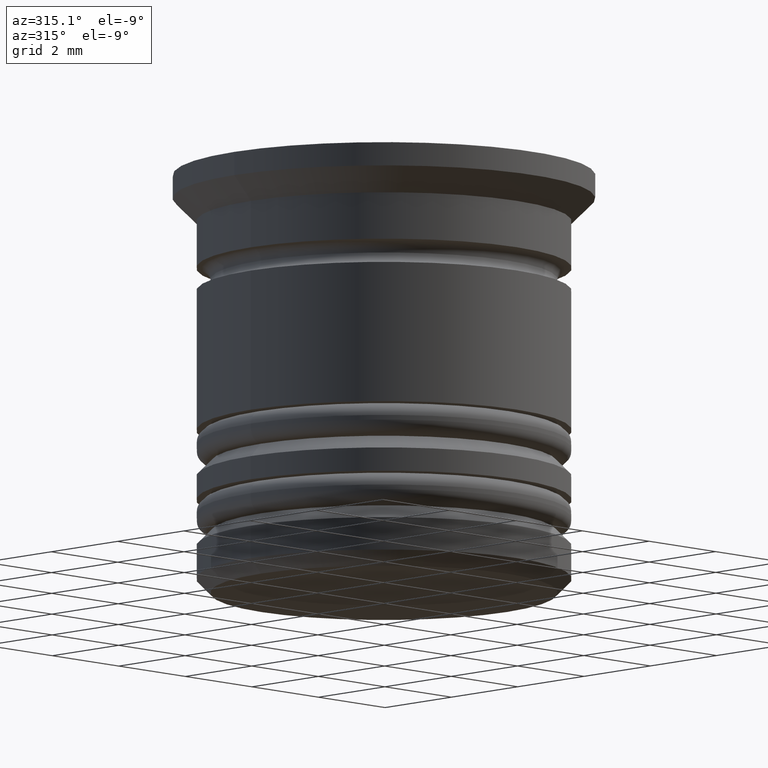
[diagram: clean part render]
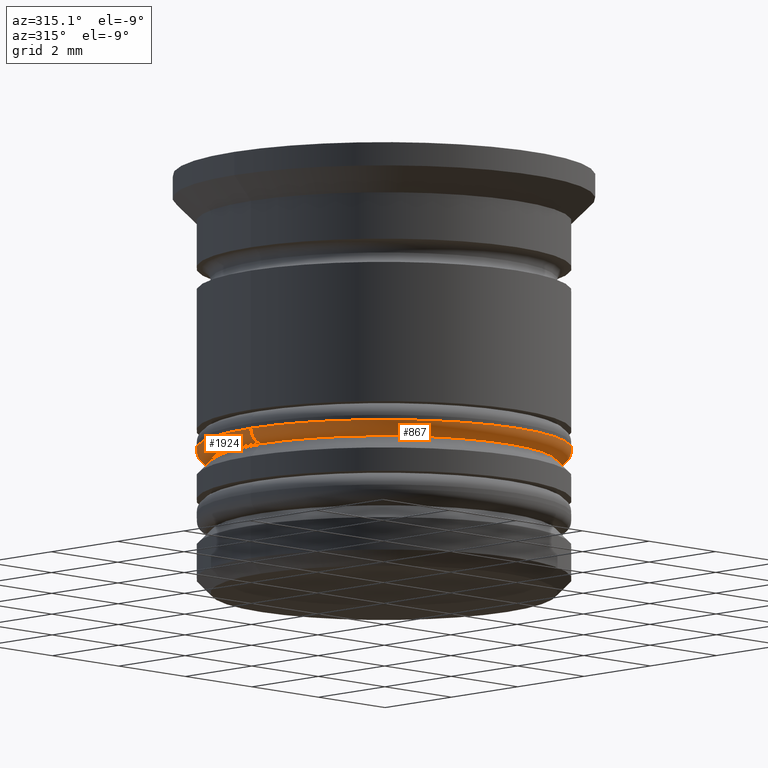
[diagram: same view with one multi-face feature highlighted, each face labeled with its STEP entity id]
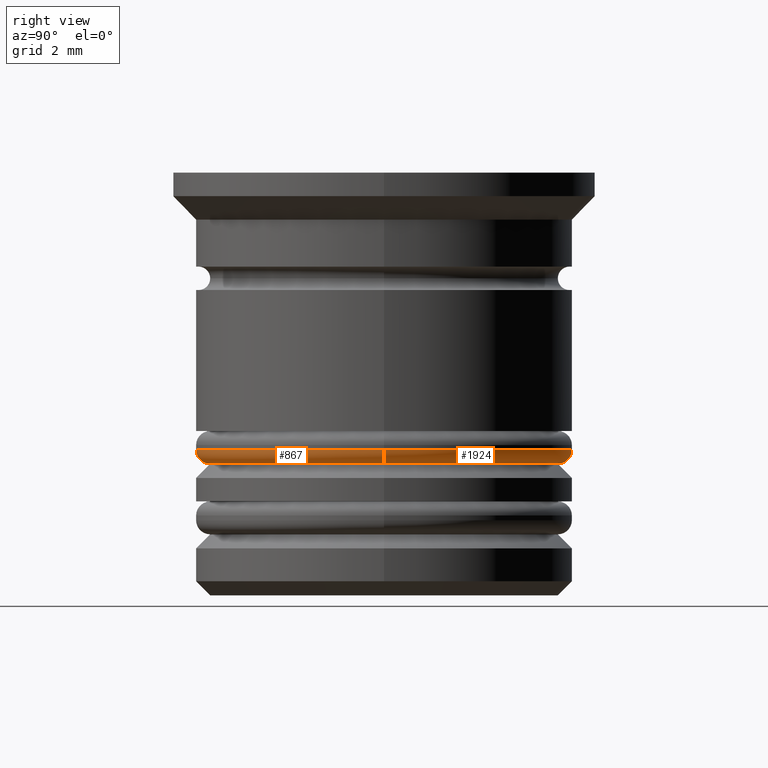
[diagram: same view with one multi-face feature highlighted, each face labeled with its STEP entity id]
A machine part, auxiliary view. The highlighted faces form ONE feature: a constant-radius fillet chain: 2 tangent blend faces with common blend radius 0.3 mm. The faces share edges in the B-rep.
A second angle (right view) of the same feature is appended — it is thin or edge-on in the first view.
Their STEP definitions:
[1] entity #867 (Torus):
#48 = DIRECTION ( 'NONE',  ( 0.000000000000000000, -1.000000000000000000, 0.000000000000000000 ) ) ;
#154 = DIRECTION ( 'NONE',  ( 1.224646799147353207E-16, 1.000000000000000000, -0.000000000000000000 ) ) ;
#185 = EDGE_CURVE ( 'NONE', #1953, #1859, #876, .T. ) ;
#198 = AXIS2_PLACEMENT_3D ( 'NONE', #1472, #48, #1426 ) ;
#207 = VERTEX_POINT ( 'NONE', #329 ) ;
#329 = CARTESIAN_POINT ( 'NONE',  ( 4.000000000000000888, 0.000000000000000000, -5.900000000000003908 ) ) ;
#354 = DIRECTION ( 'NONE',  ( 1.000000000000000000, 0.000000000000000000, 0.000000000000000000 ) ) ;
#364 = AXIS2_PLACEMENT_3D ( 'NONE', #385, #368, #354 ) ;
#368 = DIRECTION ( 'NONE',  ( 0.000000000000000000, 0.000000000000000000, 1.000000000000000000 ) ) ;
#372 = DIRECTION ( 'NONE',  ( -0.000000000000000000, -0.000000000000000000, -1.000000000000000000 ) ) ;
#379 = EDGE_CURVE ( 'NONE', #580, #1953, #1603, .T. ) ;
#385 = CARTESIAN_POINT ( 'NONE',  ( 0.000000000000000000, 0.000000000000000000, -5.900000000000003908 ) ) ;
#395 = AXIS2_PLACEMENT_3D ( 'NONE', #1973, #565, #581 ) ;
#426 = CARTESIAN_POINT ( 'NONE',  ( -3.700000000000001066, 4.714890176717310501E-16, -6.200000000000003730 ) ) ;
#565 = DIRECTION ( 'NONE',  ( 0.000000000000000000, 0.000000000000000000, 1.000000000000000000 ) ) ;
#580 = VERTEX_POINT ( 'NONE', #1996 ) ;
#581 = DIRECTION ( 'NONE',  ( 1.000000000000000000, 0.000000000000000000, 0.000000000000000000 ) ) ;
#606 = ORIENTED_EDGE ( 'NONE', *, *, #379, .F. ) ;
#761 = CIRCLE ( 'NONE', #364, 4.000000000000000888 ) ;
#775 = DIRECTION ( 'NONE',  ( -1.000000000000000000, 1.224646799147353207E-16, 0.000000000000000000 ) ) ;
#867 = ADVANCED_FACE ( 'NONE', ( #869 ), #1402, .T. ) ;
#869 = FACE_OUTER_BOUND ( 'NONE', #918, .T. ) ;
#876 = CIRCLE ( 'NONE', #1965, 0.2999999999999999334 ) ;
#886 = ORIENTED_EDGE ( 'NONE', *, *, #1546, .F. ) ;
#918 = EDGE_LOOP ( 'NONE', ( #1158, #606, #1525, #886 ) ) ;
#1125 = CARTESIAN_POINT ( 'NONE',  ( -3.700000000000001066, 4.531193156845208173E-16, -5.900000000000003908 ) ) ;
#1158 = ORIENTED_EDGE ( 'NONE', *, *, #185, .F. ) ;
#1275 = AXIS2_PLACEMENT_3D ( 'NONE', #1455, #372, #1447 ) ;
#1402 = TOROIDAL_SURFACE ( 'NONE', #395, 3.700000000000001066, 0.2999999999999999889 ) ;
#1426 = DIRECTION ( 'NONE',  ( 0.000000000000000000, 0.000000000000000000, -1.000000000000000000 ) ) ;
#1447 = DIRECTION ( 'NONE',  ( 1.000000000000000000, 0.000000000000000000, 0.000000000000000000 ) ) ;
#1455 = CARTESIAN_POINT ( 'NONE',  ( 0.000000000000000000, 0.000000000000000000, -6.200000000000003730 ) ) ;
#1458 = CARTESIAN_POINT ( 'NONE',  ( -4.000000000000000888, 4.898587196589413815E-16, -5.900000000000003908 ) ) ;
#1472 = CARTESIAN_POINT ( 'NONE',  ( 3.700000000000001066, 0.000000000000000000, -5.900000000000003908 ) ) ;
#1525 = ORIENTED_EDGE ( 'NONE', *, *, #1833, .T. ) ;
#1546 = EDGE_CURVE ( 'NONE', #1859, #207, #761, .T. ) ;
#1603 = CIRCLE ( 'NONE', #1275, 3.700000000000001066 ) ;
#1712 = CIRCLE ( 'NONE', #198, 0.2999999999999999334 ) ;
#1833 = EDGE_CURVE ( 'NONE', #580, #207, #1712, .T. ) ;
#1859 = VERTEX_POINT ( 'NONE', #1458 ) ;
#1953 = VERTEX_POINT ( 'NONE', #426 ) ;
#1965 = AXIS2_PLACEMENT_3D ( 'NONE', #1125, #154, #775 ) ;
#1973 = CARTESIAN_POINT ( 'NONE',  ( 0.000000000000000000, 0.000000000000000000, -5.900000000000003908 ) ) ;
#1996 = CARTESIAN_POINT ( 'NONE',  ( 3.700000000000001066, 0.000000000000000000, -6.200000000000003730 ) ) ;
[2] entity #1924 (Torus):
#48 = DIRECTION ( 'NONE',  ( 0.000000000000000000, -1.000000000000000000, 0.000000000000000000 ) ) ;
#113 = CARTESIAN_POINT ( 'NONE',  ( 0.000000000000000000, 0.000000000000000000, -5.900000000000003908 ) ) ;
#154 = DIRECTION ( 'NONE',  ( 1.224646799147353207E-16, 1.000000000000000000, -0.000000000000000000 ) ) ;
#185 = EDGE_CURVE ( 'NONE', #1953, #1859, #876, .T. ) ;
#191 = AXIS2_PLACEMENT_3D ( 'NONE', #923, #1885, #1726 ) ;
#198 = AXIS2_PLACEMENT_3D ( 'NONE', #1472, #48, #1426 ) ;
#207 = VERTEX_POINT ( 'NONE', #329 ) ;
#329 = CARTESIAN_POINT ( 'NONE',  ( 4.000000000000000888, 0.000000000000000000, -5.900000000000003908 ) ) ;
#399 = TOROIDAL_SURFACE ( 'NONE', #1975, 3.700000000000001066, 0.2999999999999999889 ) ;
#426 = CARTESIAN_POINT ( 'NONE',  ( -3.700000000000001066, 4.714890176717310501E-16, -6.200000000000003730 ) ) ;
#458 = CIRCLE ( 'NONE', #191, 4.000000000000000888 ) ;
#580 = VERTEX_POINT ( 'NONE', #1996 ) ;
#666 = EDGE_CURVE ( 'NONE', #207, #1859, #458, .T. ) ;
#670 = ORIENTED_EDGE ( 'NONE', *, *, #892, .F. ) ;
#745 = DIRECTION ( 'NONE',  ( 0.000000000000000000, 0.000000000000000000, 1.000000000000000000 ) ) ;
#775 = DIRECTION ( 'NONE',  ( -1.000000000000000000, 1.224646799147353207E-16, 0.000000000000000000 ) ) ;
#792 = ORIENTED_EDGE ( 'NONE', *, *, #1833, .F. ) ;
#876 = CIRCLE ( 'NONE', #1965, 0.2999999999999999334 ) ;
#892 = EDGE_CURVE ( 'NONE', #1953, #580, #1672, .T. ) ;
#923 = CARTESIAN_POINT ( 'NONE',  ( 0.000000000000000000, 0.000000000000000000, -5.900000000000003908 ) ) ;
#1090 = EDGE_LOOP ( 'NONE', ( #670, #1623, #1890, #792 ) ) ;
#1125 = CARTESIAN_POINT ( 'NONE',  ( -3.700000000000001066, 4.531193156845208173E-16, -5.900000000000003908 ) ) ;
#1201 = FACE_OUTER_BOUND ( 'NONE', #1090, .T. ) ;
#1260 = DIRECTION ( 'NONE',  ( -0.000000000000000000, -0.000000000000000000, -1.000000000000000000 ) ) ;
#1426 = DIRECTION ( 'NONE',  ( 0.000000000000000000, 0.000000000000000000, -1.000000000000000000 ) ) ;
#1458 = CARTESIAN_POINT ( 'NONE',  ( -4.000000000000000888, 4.898587196589413815E-16, -5.900000000000003908 ) ) ;
#1472 = CARTESIAN_POINT ( 'NONE',  ( 3.700000000000001066, 0.000000000000000000, -5.900000000000003908 ) ) ;
#1549 = CARTESIAN_POINT ( 'NONE',  ( 0.000000000000000000, 0.000000000000000000, -6.200000000000003730 ) ) ;
#1566 = DIRECTION ( 'NONE',  ( 1.000000000000000000, 0.000000000000000000, 0.000000000000000000 ) ) ;
#1623 = ORIENTED_EDGE ( 'NONE', *, *, #185, .T. ) ;
#1672 = CIRCLE ( 'NONE', #1968, 3.700000000000001066 ) ;
#1712 = CIRCLE ( 'NONE', #198, 0.2999999999999999334 ) ;
#1726 = DIRECTION ( 'NONE',  ( 1.000000000000000000, 0.000000000000000000, 0.000000000000000000 ) ) ;
#1802 = DIRECTION ( 'NONE',  ( 1.000000000000000000, 0.000000000000000000, 0.000000000000000000 ) ) ;
#1833 = EDGE_CURVE ( 'NONE', #580, #207, #1712, .T. ) ;
#1859 = VERTEX_POINT ( 'NONE', #1458 ) ;
#1885 = DIRECTION ( 'NONE',  ( 0.000000000000000000, 0.000000000000000000, 1.000000000000000000 ) ) ;
#1890 = ORIENTED_EDGE ( 'NONE', *, *, #666, .F. ) ;
#1924 = ADVANCED_FACE ( 'NONE', ( #1201 ), #399, .T. ) ;
#1953 = VERTEX_POINT ( 'NONE', #426 ) ;
#1965 = AXIS2_PLACEMENT_3D ( 'NONE', #1125, #154, #775 ) ;
#1968 = AXIS2_PLACEMENT_3D ( 'NONE', #1549, #1260, #1566 ) ;
#1975 = AXIS2_PLACEMENT_3D ( 'NONE', #113, #745, #1802 ) ;
#1996 = CARTESIAN_POINT ( 'NONE',  ( 3.700000000000001066, 0.000000000000000000, -6.200000000000003730 ) ) ;